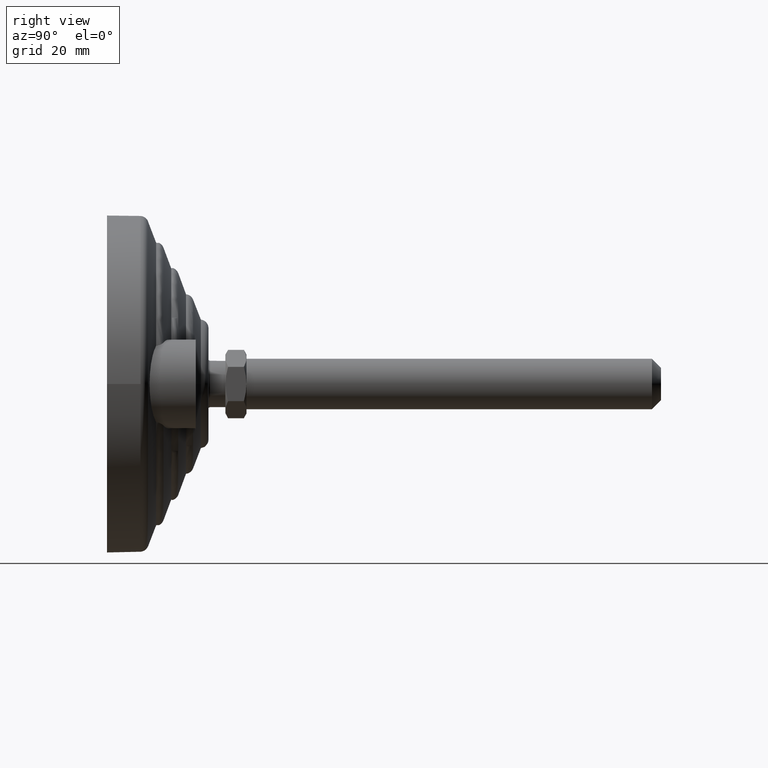
[diagram: clean part render]
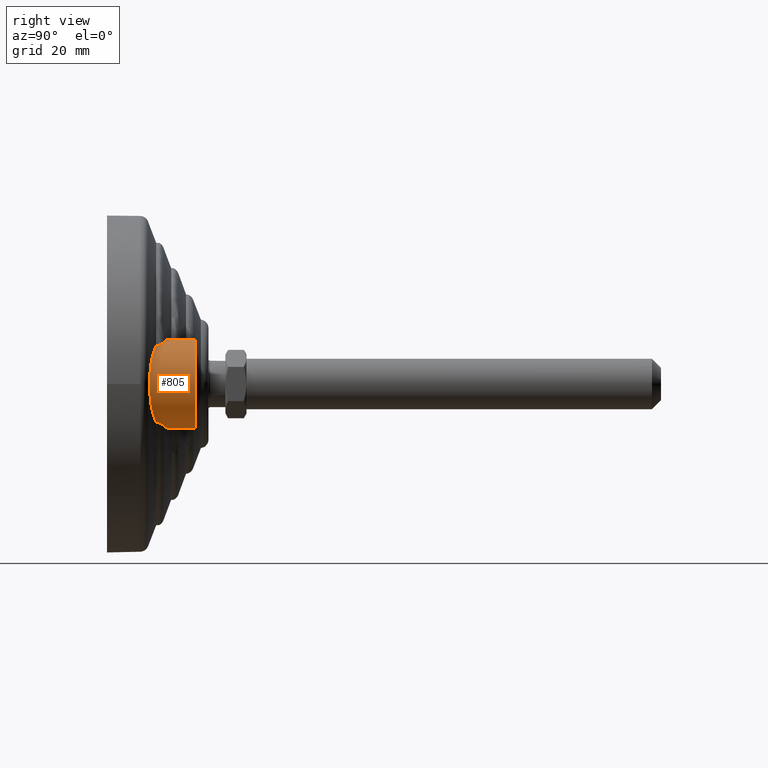
[diagram: same view with one face highlighted and labeled with its STEP entity id]
A machine part, right view. The second image highlights one B-rep face of the part: STEP entity #805.
In plain terms, the highlighted cylindrical surface (partial cylindrical patch) has radius 10.5 mm, axis along (0, -1, 0).
Its self-contained STEP definition (entity closure, byte-faithful):
#62=CYLINDRICAL_SURFACE('',#934,10.5);
#93=B_SPLINE_CURVE_WITH_KNOTS('',3,(#1219,#1220,#1221,#1222,#1223,#1224,
#1225,#1226,#1227,#1228,#1229,#1230),.UNSPECIFIED.,.F.,.F.,(4,2,2,2,2,4),
(2.08063056382818,2.33542865542635,2.59022674702452,2.84502483862269,3.09982293022086,
3.16026059184862),.UNSPECIFIED.);
#96=B_SPLINE_CURVE_WITH_KNOTS('',3,(#1261,#1262,#1263,#1264,#1265,#1266,
#1267,#1268,#1269,#1270,#1271,#1272),.UNSPECIFIED.,.F.,.F.,(4,2,2,2,2,4),
(1.00100053580773,1.06143819743549,1.31623628903366,1.57103438063183,1.82583247223,
2.08063056382818),.UNSPECIFIED.);
#105=B_SPLINE_CURVE_WITH_KNOTS('',3,(#1421,#1422,#1423,#1424,#1425,#1426,
#1427,#1428,#1429,#1430),.UNSPECIFIED.,.F.,.F.,(4,2,2,2,4),(-0.272169011460622,
-0.206673864768747,-0.119790041486489,-0.0555152369709458,-0.0171393644475443),
 .UNSPECIFIED.);
#107=B_SPLINE_CURVE_WITH_KNOTS('',3,(#1443,#1444,#1445,#1446,#1447,#1448,
#1449,#1450,#1451,#1452),.UNSPECIFIED.,.F.,.F.,(4,2,2,2,4),(-1.34250230493453,
-1.30785611308365,-1.25331155550976,-1.1612624973397,-1.0931682822097),
 .UNSPECIFIED.);
#111=B_SPLINE_CURVE_WITH_KNOTS('',3,(#1549,#1550,#1551,#1552,#1553,#1554),
 .UNSPECIFIED.,.F.,.F.,(4,2,4),(0.435128689238069,0.529691843282031,0.820299322112635),
 .UNSPECIFIED.);
#112=B_SPLINE_CURVE_WITH_KNOTS('',3,(#1555,#1556,#1557,#1558,#1559,#1560),
 .UNSPECIFIED.,.F.,.F.,(4,2,4),(3.33584065151674,3.62644813034734,3.7210112843913),
 .UNSPECIFIED.);
#144=FACE_OUTER_BOUND('',#191,.T.);
#191=EDGE_LOOP('',(#659,#660,#661,#662,#663,#664,#665,#666,#667));
#231=LINE('',#1518,#258);
#232=LINE('',#1525,#259);
#258=VECTOR('',#1097,6.3774577463435);
#259=VECTOR('',#1100,6.3774577463435);
#311=CIRCLE('',#932,10.5);
#327=VERTEX_POINT('',#1216);
#328=VERTEX_POINT('',#1218);
#332=VERTEX_POINT('',#1259);
#360=VERTEX_POINT('',#1419);
#361=VERTEX_POINT('',#1442);
#375=VERTEX_POINT('',#1509);
#376=VERTEX_POINT('',#1516);
#377=VERTEX_POINT('',#1520);
#378=VERTEX_POINT('',#1524);
#414=EDGE_CURVE('',#327,#328,#93,.T.);
#419=EDGE_CURVE('',#332,#327,#96,.T.);
#452=EDGE_CURVE('',#360,#332,#105,.T.);
#454=EDGE_CURVE('',#328,#361,#107,.T.);
#476=EDGE_CURVE('',#375,#376,#231,.T.);
#478=EDGE_CURVE('',#377,#378,#232,.T.);
#484=EDGE_CURVE('',#376,#378,#311,.T.);
#488=EDGE_CURVE('',#375,#360,#111,.T.);
#489=EDGE_CURVE('',#361,#377,#112,.T.);
#659=ORIENTED_EDGE('',*,*,#488,.F.);
#660=ORIENTED_EDGE('',*,*,#476,.T.);
#661=ORIENTED_EDGE('',*,*,#484,.T.);
#662=ORIENTED_EDGE('',*,*,#478,.F.);
#663=ORIENTED_EDGE('',*,*,#489,.F.);
#664=ORIENTED_EDGE('',*,*,#454,.F.);
#665=ORIENTED_EDGE('',*,*,#414,.F.);
#666=ORIENTED_EDGE('',*,*,#419,.F.);
#667=ORIENTED_EDGE('',*,*,#452,.F.);
#805=ADVANCED_FACE('',(#144),#62,.T.);
#932=AXIS2_PLACEMENT_3D('',#1539,#1107,#1108);
#934=AXIS2_PLACEMENT_3D('',#1548,#1112,#1113);
#1097=DIRECTION('',(0.,1.,0.));
#1100=DIRECTION('',(0.,1.,0.));
#1107=DIRECTION('center_axis',(0.,-1.,0.));
#1108=DIRECTION('ref_axis',(0.,0.,1.));
#1112=DIRECTION('center_axis',(0.,-1.,0.));
#1113=DIRECTION('ref_axis',(0.,0.,1.));
#1216=CARTESIAN_POINT('',(37.5,10.0799933034086,2.32389248903259E-15));
#1218=CARTESIAN_POINT('',(32.3063360973724,11.6343896633681,9.06050755872555));
#1219=CARTESIAN_POINT('Ctrl Pts',(37.5,10.0799933034086,-3.46944695195361E-16));
#1220=CARTESIAN_POINT('Ctrl Pts',(37.5,10.0799933034086,0.849326971993903));
#1221=CARTESIAN_POINT('Ctrl Pts',(37.3954081081618,10.1095537846386,1.7162549637648));
#1222=CARTESIAN_POINT('Ctrl Pts',(36.9700156185367,10.2309093737991,3.40717322759572));
#1223=CARTESIAN_POINT('Ctrl Pts',(36.6493278685147,10.3226891385099,4.23119298843608));
#1224=CARTESIAN_POINT('Ctrl Pts',(35.8178344612948,10.5643978000669,5.7670026229962));
#1225=CARTESIAN_POINT('Ctrl Pts',(35.3059660725661,10.7146871863577,6.48070832783638));
#1226=CARTESIAN_POINT('Ctrl Pts',(34.1415490632157,11.0639846751723,7.74512297053743));
#1227=CARTESIAN_POINT('Ctrl Pts',(33.4889279688686,11.2631123545329,8.29573212712396));
#1228=CARTESIAN_POINT('Ctrl Pts',(32.641651817313,11.5284577657608,8.85775154482925));
#1229=CARTESIAN_POINT('Ctrl Pts',(32.4756290831059,11.5807422055193,8.96136019027992));
#1230=CARTESIAN_POINT('Ctrl Pts',(32.3063360973724,11.6343896633682,9.06050755872554));
#1259=CARTESIAN_POINT('',(32.3063360973724,11.6343896633681,-9.06050755872555));
#1261=CARTESIAN_POINT('Ctrl Pts',(32.3063360973724,11.6343896633682,-9.06050755872553));
#1262=CARTESIAN_POINT('Ctrl Pts',(32.4756290831059,11.5807422055193,-8.96136019027991));
#1263=CARTESIAN_POINT('Ctrl Pts',(32.641651817313,11.5284577657608,-8.85775154482924));
#1264=CARTESIAN_POINT('Ctrl Pts',(33.4889279688686,11.2631123545329,-8.29573212712396));
#1265=CARTESIAN_POINT('Ctrl Pts',(34.1415490632157,11.0639846751723,-7.74512297053743));
#1266=CARTESIAN_POINT('Ctrl Pts',(35.3059660725661,10.7146871863577,-6.48070832783638));
#1267=CARTESIAN_POINT('Ctrl Pts',(35.8178344612948,10.5643978000669,-5.7670026229962));
#1268=CARTESIAN_POINT('Ctrl Pts',(36.6493278685147,10.3226891385099,-4.23119298843608));
#1269=CARTESIAN_POINT('Ctrl Pts',(36.9700156185367,10.2309093737991,-3.40717322759573));
#1270=CARTESIAN_POINT('Ctrl Pts',(37.3954081081618,10.1095537846386,-1.71625496376481));
#1271=CARTESIAN_POINT('Ctrl Pts',(37.5,10.0799933034086,-0.849326971993903));
#1272=CARTESIAN_POINT('Ctrl Pts',(37.5,10.0799933034086,-3.46944695195361E-16));
#1419=CARTESIAN_POINT('',(30.7243523480937,13.3536735555763,-9.81729084764472));
#1421=CARTESIAN_POINT('Ctrl Pts',(30.7243523480937,13.3536735555763,-9.81729084764473));
#1422=CARTESIAN_POINT('Ctrl Pts',(30.9269336777935,13.2895206185697,-9.74043825535056));
#1423=CARTESIAN_POINT('Ctrl Pts',(31.1203951590663,13.2027239828022,-9.65974903299946));
#1424=CARTESIAN_POINT('Ctrl Pts',(31.5363810385897,12.9517947973315,-9.47305844350508));
#1425=CARTESIAN_POINT('Ctrl Pts',(31.7518355665092,12.7690383424399,-9.36525787547107));
#1426=CARTESIAN_POINT('Ctrl Pts',(32.0513621703683,12.3871051564537,-9.20622260062833));
#1427=CARTESIAN_POINT('Ctrl Pts',(32.1554168514334,12.2038781059998,-9.14756670705056));
#1428=CARTESIAN_POINT('Ctrl Pts',(32.2653715864553,11.8837691796782,-9.08449820997783));
#1429=CARTESIAN_POINT('Ctrl Pts',(32.293108898622,11.7603294563103,-9.06825414044203));
#1430=CARTESIAN_POINT('Ctrl Pts',(32.3063360973724,11.6343896633681,-9.06050755872551));
#1442=CARTESIAN_POINT('',(30.7243523480937,13.3536735555763,9.81729084764473));
#1443=CARTESIAN_POINT('Ctrl Pts',(32.3063360973724,11.6343896633681,9.06050755872552));
#1444=CARTESIAN_POINT('Ctrl Pts',(32.2944061287548,11.7479781718539,9.06749441047813));
#1445=CARTESIAN_POINT('Ctrl Pts',(32.270683279782,11.8594235436489,9.08138163084829));
#1446=CARTESIAN_POINT('Ctrl Pts',(32.1815789120219,12.1384624392739,9.132644311859));
#1447=CARTESIAN_POINT('Ctrl Pts',(32.1017988600934,12.2963304649361,9.17790309393391));
#1448=CARTESIAN_POINT('Ctrl Pts',(31.8402238368093,12.6809822782326,9.31971782156739));
#1449=CARTESIAN_POINT('Ctrl Pts',(31.6184051368934,12.8918483292,9.43420045013403));
#1450=CARTESIAN_POINT('Ctrl Pts',(31.1601258003481,13.1847739484002,9.64309155385952));
#1451=CARTESIAN_POINT('Ctrl Pts',(30.9473186237771,13.2830651660485,9.73270488749805));
#1452=CARTESIAN_POINT('Ctrl Pts',(30.7243523480937,13.3536735555763,9.81729084764473));
#1509=CARTESIAN_POINT('',(27.,14.6225422536565,-10.5));
#1516=CARTESIAN_POINT('',(27.,21.,-10.5));
#1518=CARTESIAN_POINT('',(27.,14.6225422536565,-10.5));
#1520=CARTESIAN_POINT('',(27.,14.6225422536565,10.5));
#1524=CARTESIAN_POINT('',(27.,21.,10.5));
#1525=CARTESIAN_POINT('',(27.,14.6225422536565,10.5));
#1539=CARTESIAN_POINT('Origin',(27.,21.,1.77635683940025E-15));
#1548=CARTESIAN_POINT('Origin',(27.,1.,1.77635683940025E-15));
#1549=CARTESIAN_POINT('Ctrl Pts',(27.,14.6225422536565,-10.5));
#1550=CARTESIAN_POINT('Ctrl Pts',(27.3100625601747,14.5109163877395,-10.5));
#1551=CARTESIAN_POINT('Ctrl Pts',(27.6208747110214,14.4006946398294,-10.4862470382709));
#1552=CARTESIAN_POINT('Ctrl Pts',(28.8835374298766,13.9591533364497,-10.373863285386));
#1553=CARTESIAN_POINT('Ctrl Pts',(29.8300063230366,13.6428573128393,-10.1565758673229));
#1554=CARTESIAN_POINT('Ctrl Pts',(30.7243523480937,13.3536735555763,-9.81729084764473));
#1555=CARTESIAN_POINT('Ctrl Pts',(30.7243523480937,13.3536735555763,9.81729084764473));
#1556=CARTESIAN_POINT('Ctrl Pts',(29.8300063230366,13.6428573128393,10.1565758673229));
#1557=CARTESIAN_POINT('Ctrl Pts',(28.8835374298766,13.9591533364497,10.373863285386));
#1558=CARTESIAN_POINT('Ctrl Pts',(27.6208747110214,14.4006946398294,10.4862470382709));
#1559=CARTESIAN_POINT('Ctrl Pts',(27.3100625601747,14.5109163877395,10.5));
#1560=CARTESIAN_POINT('Ctrl Pts',(27.,14.6225422536565,10.5));